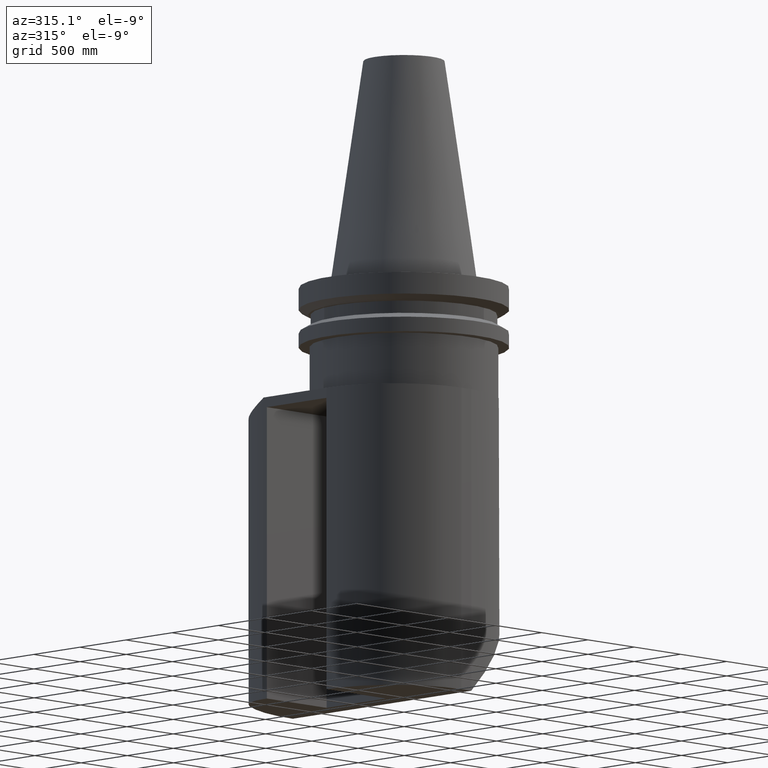
[diagram: clean part render]
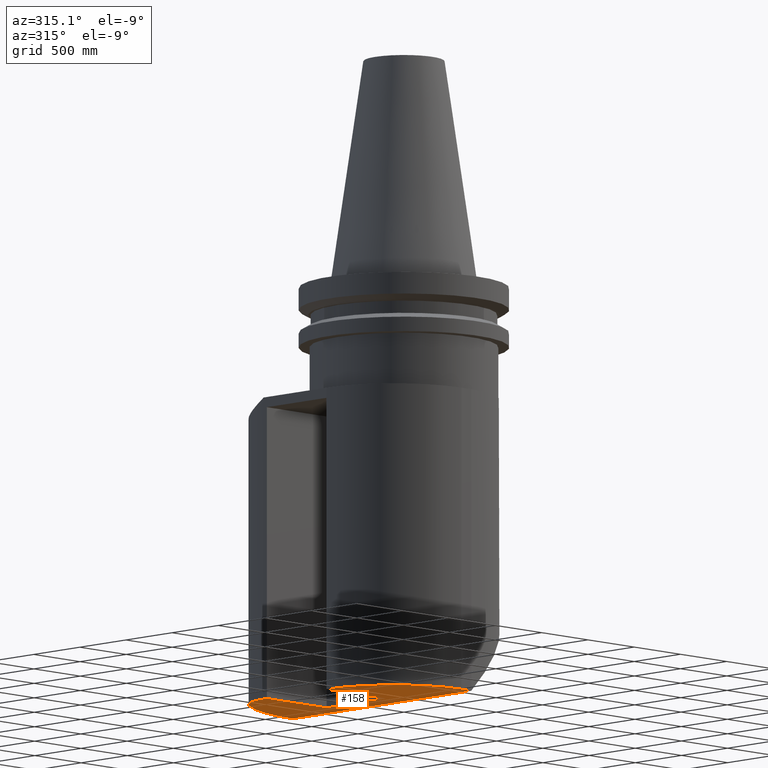
[diagram: same view with one face highlighted and labeled with its STEP entity id]
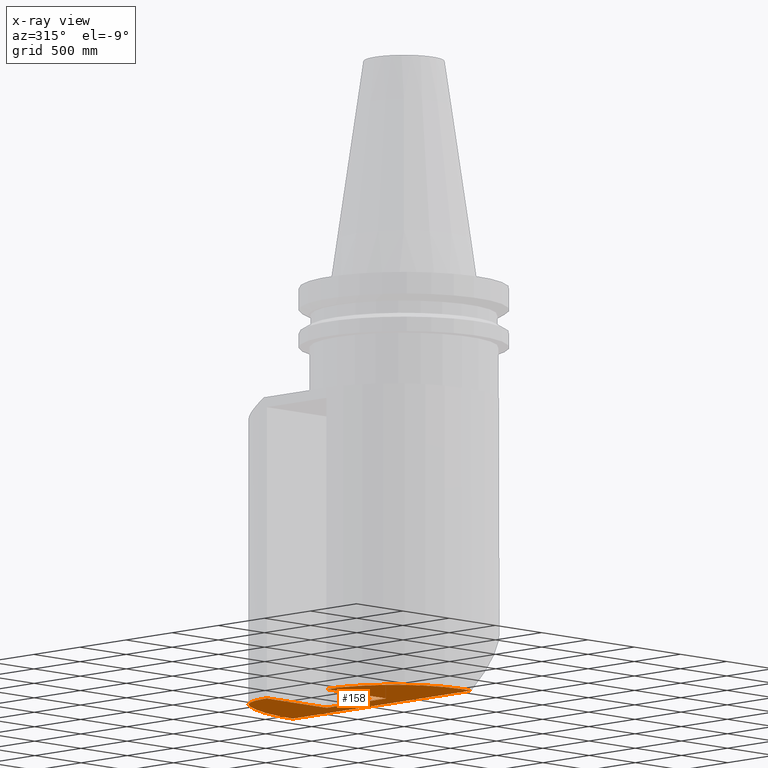
[diagram: x-ray of the same camera — body ghosted, the highlighted face saturated]
A machine part, auxiliary view. The second image highlights one B-rep face of the part: STEP entity #158.
The next image is the same camera in x-ray: the body ghosted, the highlighted face saturated — about 0% of this face is hidden behind the body in this view.
In plain terms, the highlighted planar face has unit normal (0, -0, -1).
Its self-contained STEP definition (entity closure, byte-faithful):
#110=EDGE_CURVE('Unnamed[1]',#324,#325,#326,.T.);
#132=EDGE_CURVE('Unnamed[1]',#357,#361,#362,.T.);
#158=ADVANCED_FACE('Unnamed[1]',(#399),#400,.T.);
#166=EDGE_CURVE('Unnamed[1]',#361,#410,#411,.T.);
#212=EDGE_CURVE('Unnamed[1]',#476,#477,#478,.T.);
#216=EDGE_CURVE('Unnamed[1]',#410,#483,#484,.T.);
#261=EDGE_CURVE('Unnamed[1]',#477,#357,#544,.T.);
#265=EDGE_CURVE('Unnamed[1]',#325,#476,#548,.T.);
#267=EDGE_CURVE('Unnamed[1]',#483,#451,#550,.T.);
#281=EDGE_CURVE('Unnamed[1]',#451,#324,#567,.T.);
#324=VERTEX_POINT('',#609);
#325=VERTEX_POINT('',#610);
#326=LINE('',#611,#612);
#357=VERTEX_POINT('',#673);
#361=VERTEX_POINT('',#678);
#362=LINE('',#679,#680);
#399=FACE_OUTER_BOUND('',#750,.T.);
#400=PLANE('',#751);
#410=VERTEX_POINT('',#764);
#411=CIRCLE('',#765,28.75);
#451=VERTEX_POINT('',#818);
#476=VERTEX_POINT('',#853);
#477=VERTEX_POINT('',#854);
#478=CIRCLE('',#855,47.5);
#483=VERTEX_POINT('',#862);
#484=LINE('',#863,#864);
#544=LINE('',#953,#954);
#548=CIRCLE('',#961,15.0);
#550=LINE('',#964,#965);
#567=LINE('',#992,#993);
#609=CARTESIAN_POINT('',(-32.9999999999993,25.4000000000002,-126.999999999999));
#610=CARTESIAN_POINT('',(-33.0,27.0601182554633,-126.999999999999));
#611=CARTESIAN_POINT('',(-32.9999999999914,6.76502956385074,-126.999999999999));
#612=VECTOR('',#1038,1.0);
#673=CARTESIAN_POINT('',(-1.02805433060495E-012,-28.7499999999998,-126.999999999999));
#678=CARTESIAN_POINT('',(-4.25000000000013,-28.75,-126.999999999999));
#679=CARTESIAN_POINT('',(10.8124999999995,-28.7499999999995,-126.999999999999));
#680=VECTOR('',#1067,1.0);
#750=EDGE_LOOP('',(#1104,#1105,#1106,#1107,#1108,#1109,#1110,#1111,#1112));
#751=AXIS2_PLACEMENT_3D('',#1113,#1114,#1115);
#764=CARTESIAN_POINT('',(-33.0,-1.21524234491607E-011,-126.999999999999));
#765=AXIS2_PLACEMENT_3D('',#1132,#1133,#1134);
#818=CARTESIAN_POINT('',(-7.60000000000012,25.4000000000002,-126.999999999999));
#853=CARTESIAN_POINT('',(-26.3076923076925,39.5494036041479,-126.999999999999));
#854=CARTESIAN_POINT('',(2.87179435024333E-013,47.5,-126.999999999998));
#855=AXIS2_PLACEMENT_3D('',#1224,#1225,#1226);
#862=CARTESIAN_POINT('',(-7.59999999999978,1.64149846758866E-013,-126.999999999999));
#863=CARTESIAN_POINT('',(1.7250000000023,2.14608612292396E-013,-126.999999999999));
#864=VECTOR('',#1230,1.0);
#953=CARTESIAN_POINT('',(-2.0471523373646E-013,-7.77650717458557E-015,-126.999999999999));
#954=VECTOR('',#1301,1.0);
#961=AXIS2_PLACEMENT_3D('',#1303,#1304,#1305);
#964=CARTESIAN_POINT('',(-7.59999999999987,6.34999999999987,-126.999999999999));
#965=VECTOR('',#1306,1.0);
#992=CARTESIAN_POINT('',(1.72499999999952,25.4000000000002,-126.999999999999));
#993=VECTOR('',#1319,1.0);
#1038=DIRECTION('',(-4.23881899227349E-013,1.0,-6.12323399617332E-017));
#1067=DIRECTION('',(-1.0,-2.65661471499199E-014,-1.0294444897112E-014));
#1104=ORIENTED_EDGE('',*,*,#216,.T.);
#1105=ORIENTED_EDGE('',*,*,#267,.T.);
#1106=ORIENTED_EDGE('',*,*,#281,.T.);
#1107=ORIENTED_EDGE('',*,*,#110,.T.);
#1108=ORIENTED_EDGE('',*,*,#265,.T.);
#1109=ORIENTED_EDGE('',*,*,#212,.T.);
#1110=ORIENTED_EDGE('',*,*,#261,.T.);
#1111=ORIENTED_EDGE('',*,*,#132,.T.);
#1112=ORIENTED_EDGE('',*,*,#166,.T.);
#1113=CARTESIAN_POINT('',(23.75,-1.2139311396548E-014,-126.999999999998));
#1114=DIRECTION('',(1.0294444897112E-014,-6.12323399573696E-017,-1.0));
#1115=DIRECTION('',(1.0,-1.83697019872102E-016,1.0294444897112E-014));
#1132=CARTESIAN_POINT('',(-4.24999999999999,4.98476240206789E-014,-126.999999999998));
#1133=DIRECTION('',(1.0294444897112E-014,-6.12323399573696E-017,-1.0));
#1134=DIRECTION('',(3.06161699786838E-016,1.0,-6.12323399573664E-017));
#1224=CARTESIAN_POINT('',(1.55530143491712E-014,-7.77650717458558E-015,-126.999999999998));
#1225=DIRECTION('',(1.22464679914735E-016,-6.12323399573677E-017,-1.0));
#1226=DIRECTION('',(1.0,-1.83697019872103E-016,1.22464679914735E-016));
#1230=DIRECTION('',(1.0,5.41112767115479E-015,1.0294444897112E-014));
#1301=DIRECTION('',(-1.83697019872103E-016,-1.0,6.12323399573677E-017));
#1303=CARTESIAN_POINT('',(-18.0,27.0601182554698,-126.999999999998));
#1304=DIRECTION('',(1.0294444897112E-014,-6.12323399573696E-017,-1.0));
#1305=DIRECTION('',(3.06161699786838E-016,1.0,-6.12323399573664E-017));
#1306=DIRECTION('',(-1.32438822385865E-014,1.0,-6.12323399575059E-017));
#1319=DIRECTION('',(-1.0,1.83697019872102E-016,-1.0294444897112E-014));